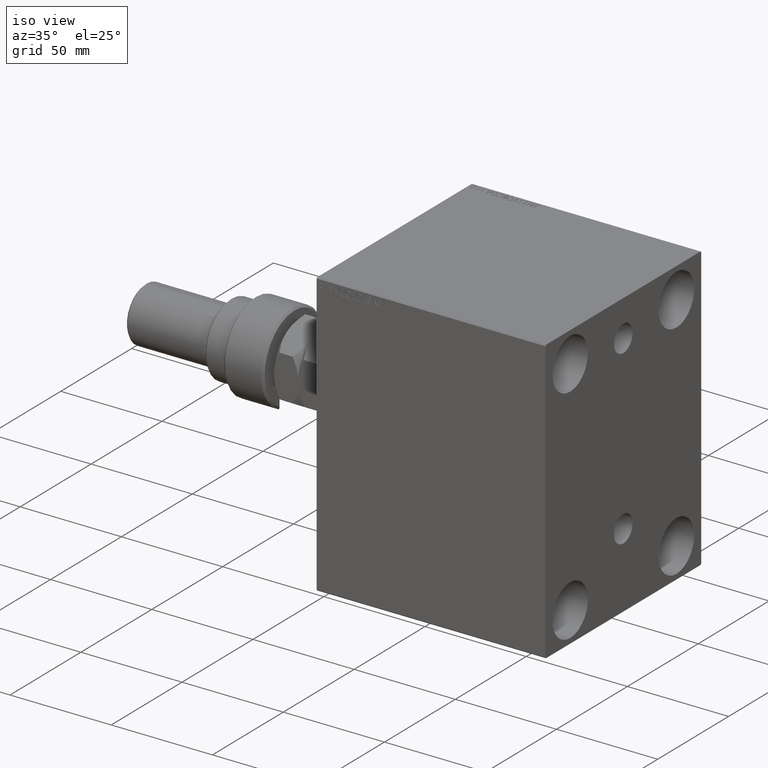
[diagram: clean part render]
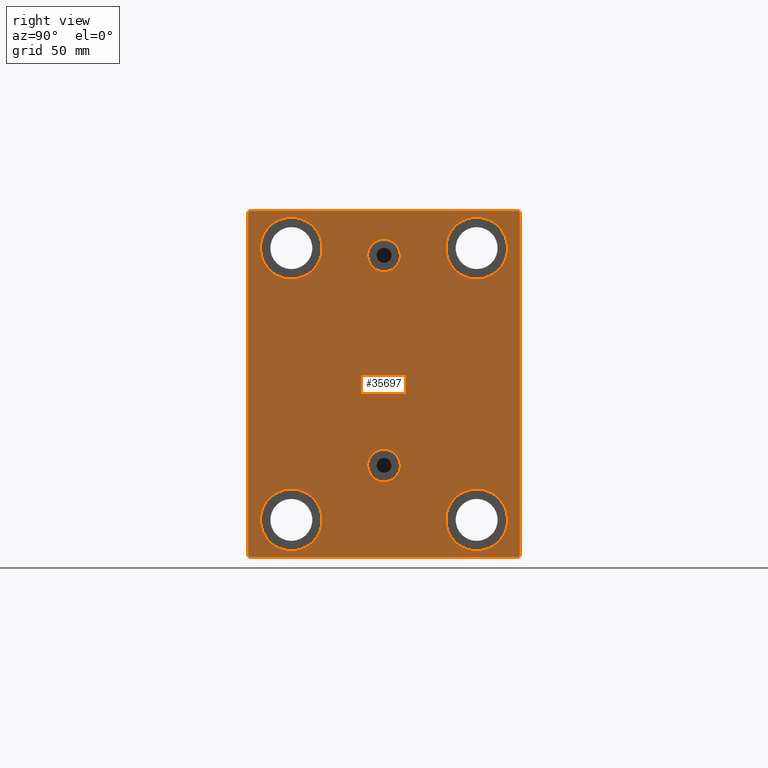
[diagram: tour spotlight — one face highlighted and labeled with its STEP entity id]
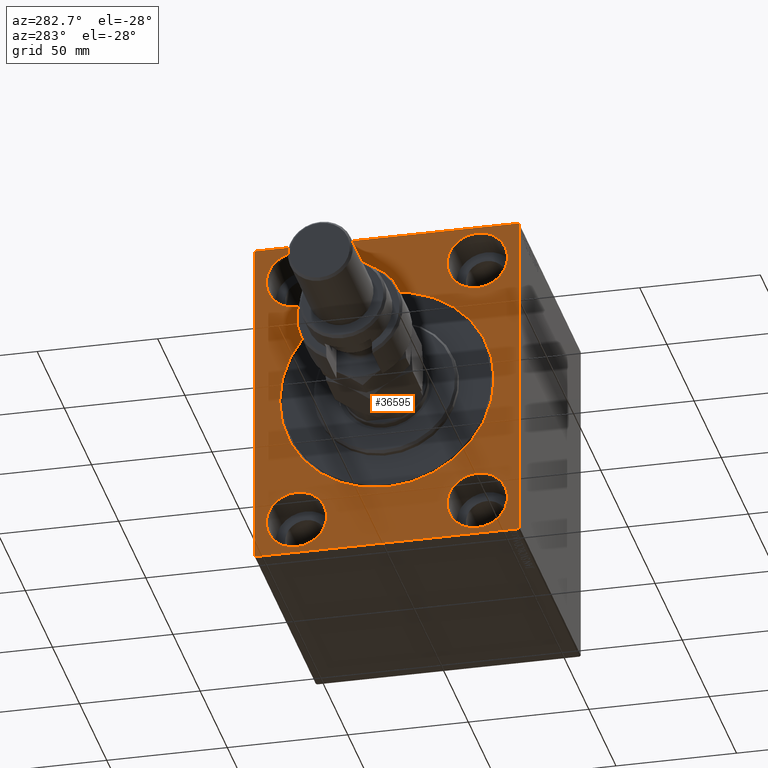
[diagram: tour spotlight — one face highlighted and labeled with its STEP entity id]
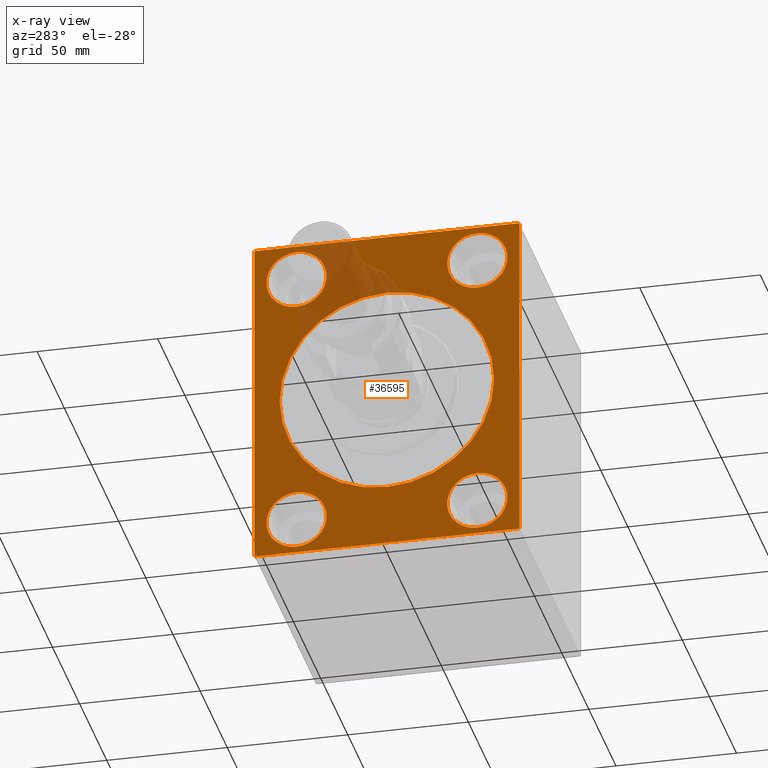
[diagram: x-ray of the same camera — body ghosted, this tour face saturated]
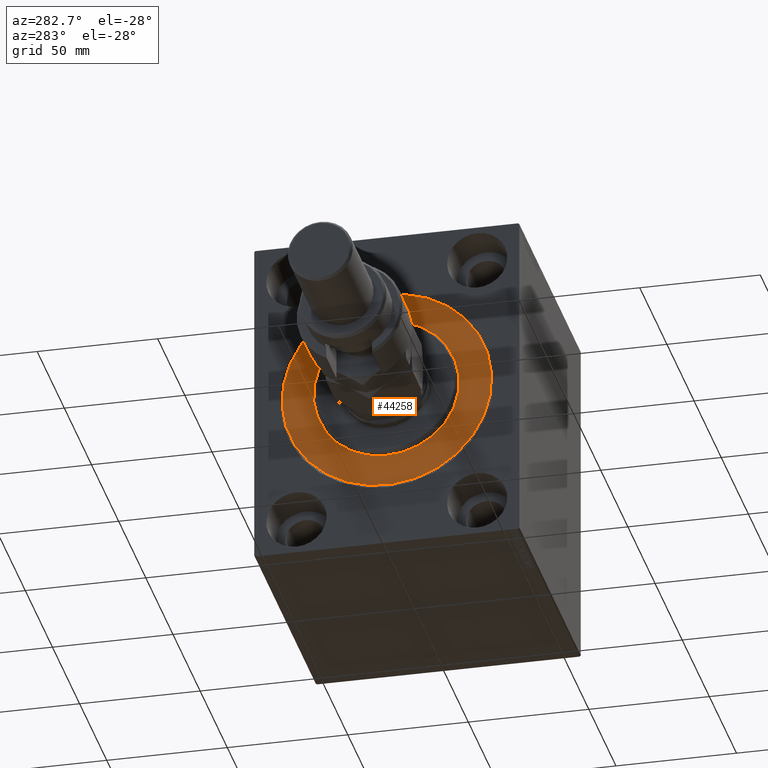
[diagram: tour spotlight — one face highlighted and labeled with its STEP entity id]
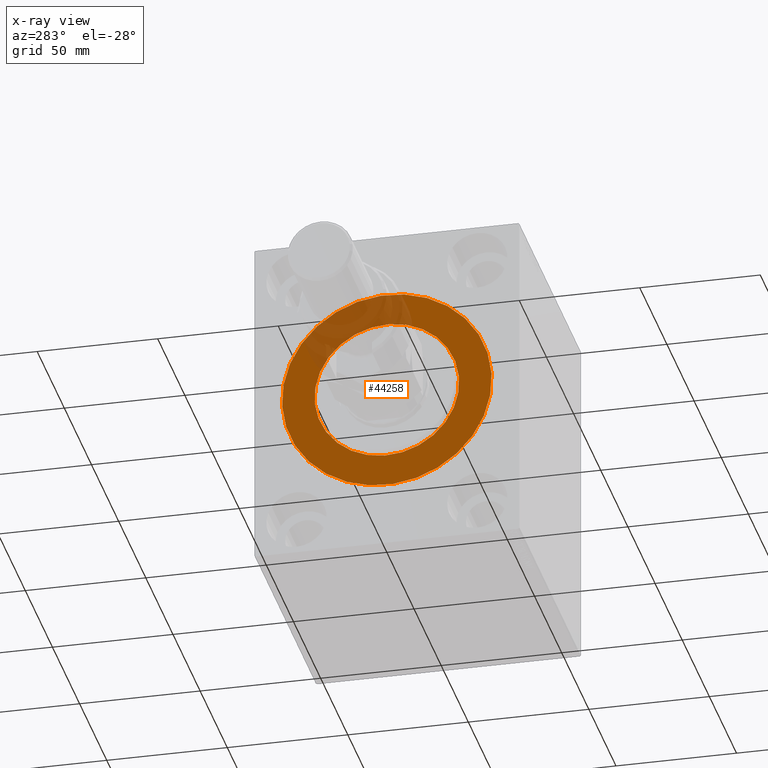
[diagram: x-ray of the same camera — body ghosted, this tour face saturated]
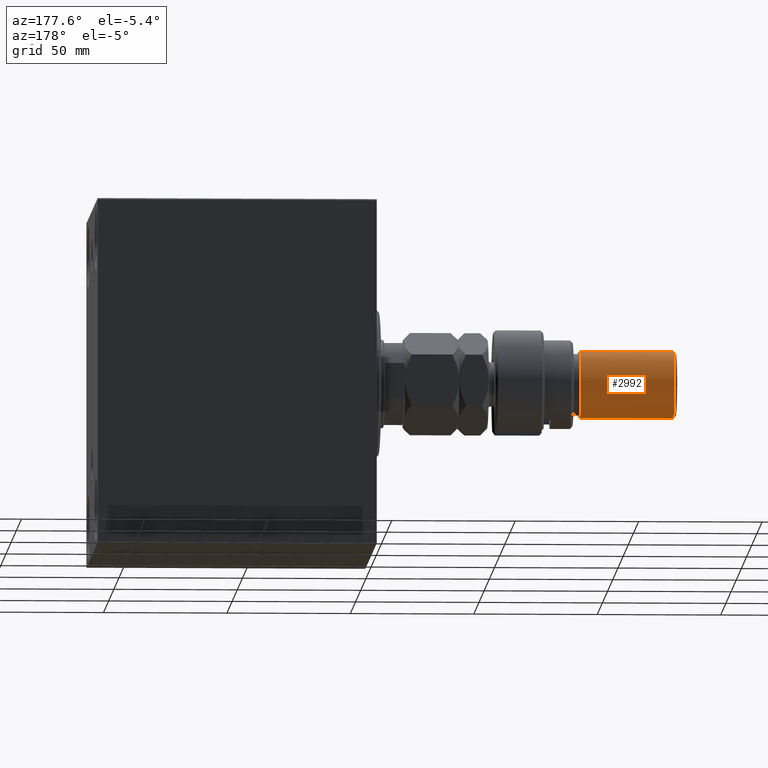
[diagram: tour spotlight — one face highlighted and labeled with its STEP entity id]
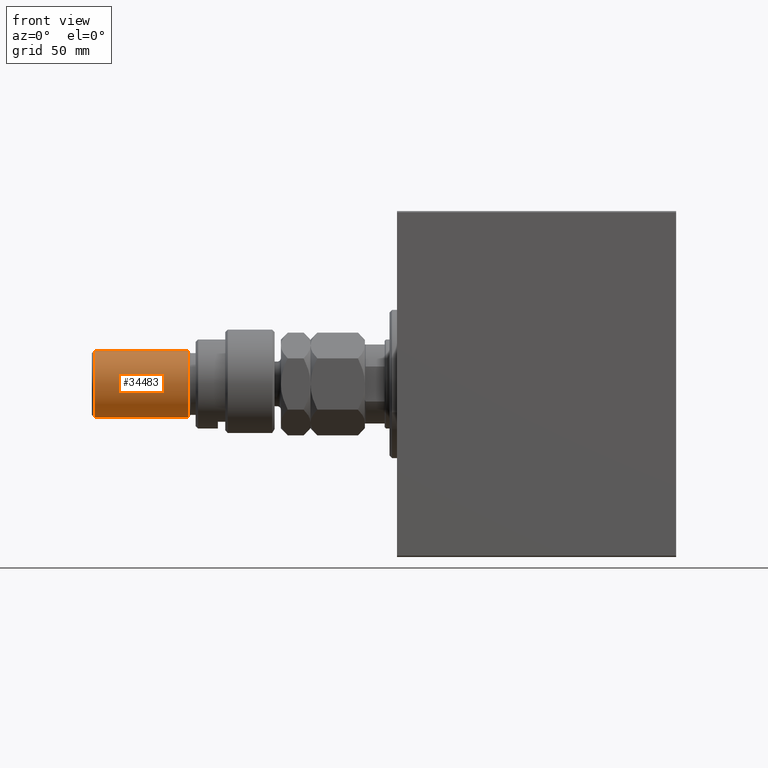
[diagram: tour spotlight — one face highlighted and labeled with its STEP entity id]
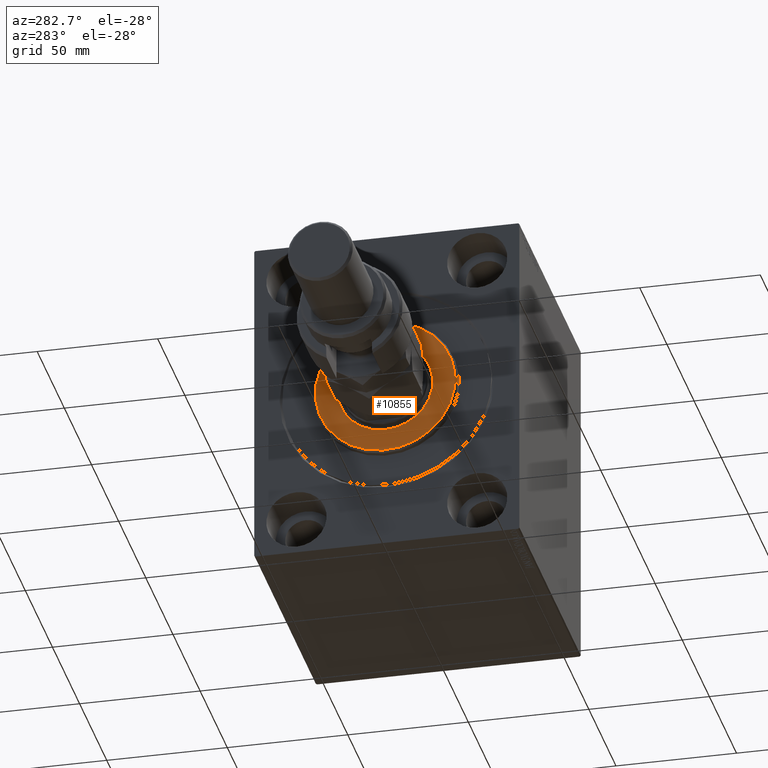
[diagram: tour spotlight — one face highlighted and labeled with its STEP entity id]
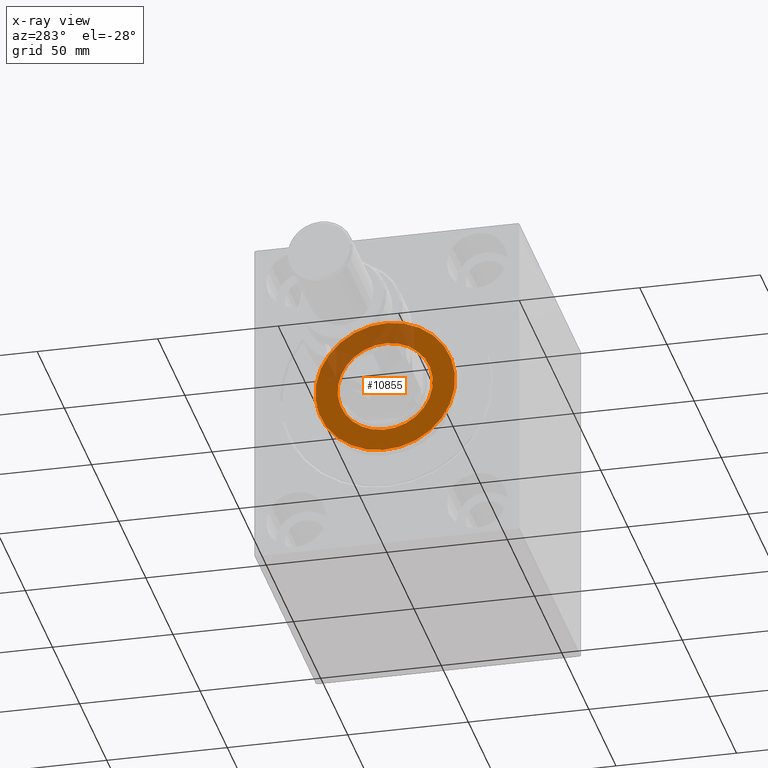
[diagram: x-ray of the same camera — body ghosted, this tour face saturated]
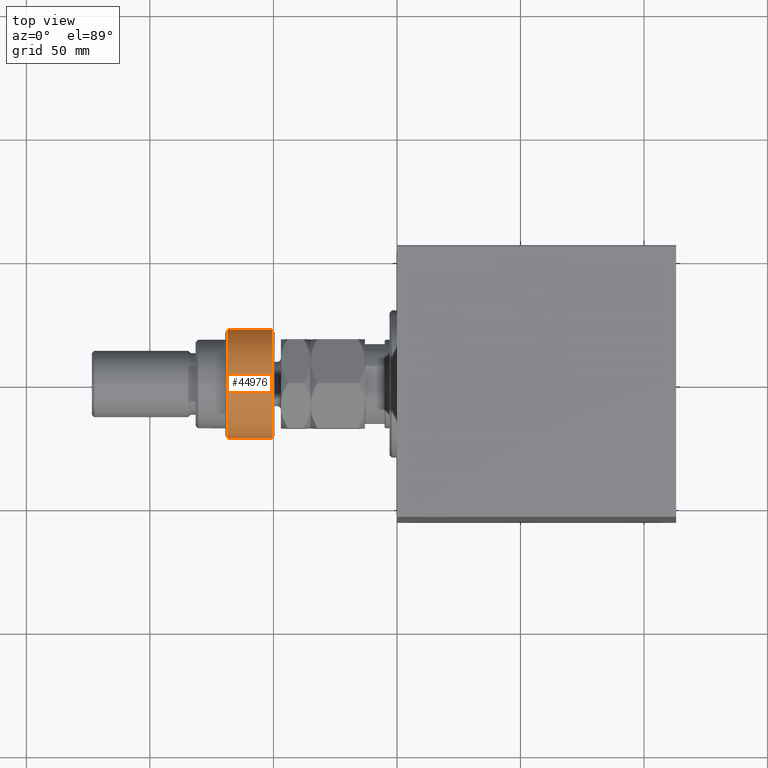
[diagram: tour spotlight — one face highlighted and labeled with its STEP entity id]
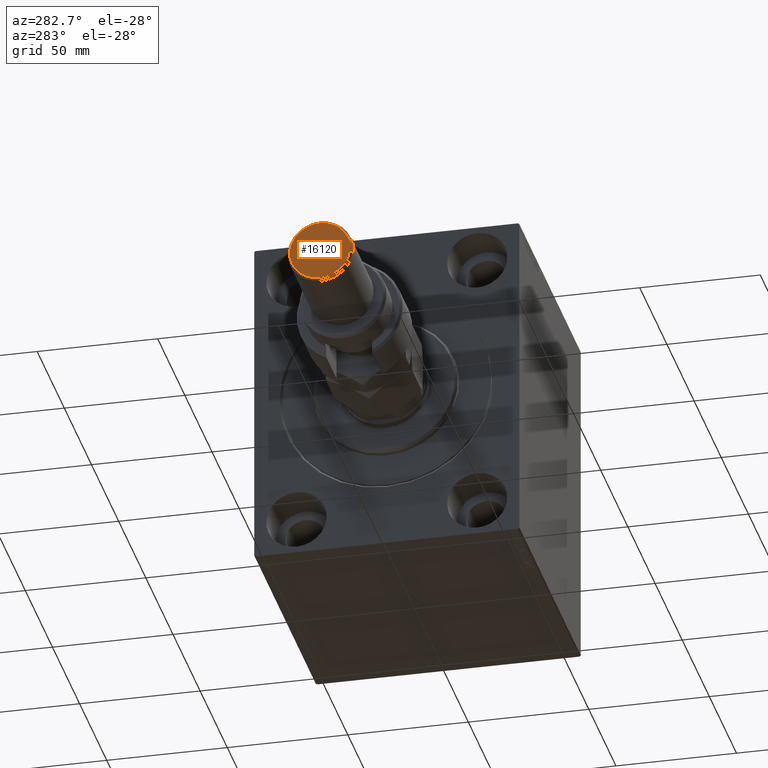
[diagram: tour spotlight — one face highlighted and labeled with its STEP entity id]
A machine part: a face-by-face anatomy tour. The part has 945 B-rep faces; the first image is the clean iso view, then the 8 largest visible faces are spotlighted one at a time (largest first), each with its STEP entity span.

Face 1 — right view, entity #35697. In plain terms, the highlighted planar face has unit normal (1, 0, 0).
Definition (entity closure, byte-faithful):
#718 = AXIS2_PLACEMENT_3D ( 'NONE', #38336, #41882, #9526 ) ;
#804 = ORIENTED_EDGE ( 'NONE', *, *, #33606, .T. ) ;
#865 = EDGE_CURVE ( 'NONE', #20344, #24026, #20164, .T. ) ;
#989 = EDGE_LOOP ( 'NONE', ( #26967, #21794 ) ) ;
#1105 = AXIS2_PLACEMENT_3D ( 'NONE', #44028, #7901, #36717 ) ;
#1686 = VERTEX_POINT ( 'NONE', #13361 ) ;
#1889 = EDGE_CURVE ( 'NONE', #44333, #20344, #32868, .T. ) ;
#2073 = LINE ( 'NONE', #19779, #3429 ) ;
#2212 = VERTEX_POINT ( 'NONE', #13421 ) ;
#2272 = EDGE_CURVE ( 'NONE', #23511, #7627, #21233, .T. ) ;
#2336 = DIRECTION ( 'NONE',  ( 1.000000000000000000, 0.000000000000000000, 0.000000000000000000 ) ) ;
#2602 = CIRCLE ( 'NONE', #1105, 12.49999999999999645 ) ;
#3189 = DIRECTION ( 'NONE',  ( 1.000000000000000000, 0.000000000000000000, 0.000000000000000000 ) ) ;
#3289 = CARTESIAN_POINT ( 'NONE',  ( 113.0000000000000000, -55.00000000000000711, -69.50000000000007105 ) ) ;
#3429 = VECTOR ( 'NONE', #23088, 1000.000000000000000 ) ;
#3535 = CARTESIAN_POINT ( 'NONE',  ( 113.0000000000000000, 62.24999999999999289, 62.24999999999999289 ) ) ;
#3605 = EDGE_CURVE ( 'NONE', #27735, #43962, #10710, .T. ) ;
#4068 = VERTEX_POINT ( 'NONE', #12125 ) ;
#4117 = ORIENTED_EDGE ( 'NONE', *, *, #7820, .T. ) ;
#4283 = CIRCLE ( 'NONE', #28437, 12.49999999999999645 ) ;
#4360 = CARTESIAN_POINT ( 'NONE',  ( 113.0000000000000000, -37.50000000000002132, -54.99999999999999289 ) ) ;
#4454 = CARTESIAN_POINT ( 'NONE',  ( 113.0000000000000000, -37.50000000000002132, -54.99999999999999289 ) ) ;
#5251 = CIRCLE ( 'NONE', #718, 12.49999999999999645 ) ;
#5656 = ORIENTED_EDGE ( 'NONE', *, *, #9083, .T. ) ;
#5840 = EDGE_LOOP ( 'NONE', ( #5656, #12038 ) ) ;
#6137 = CARTESIAN_POINT ( 'NONE',  ( 113.0000000000000000, -8.775864102628257178E-15, 52.00000000000000711 ) ) ;
#6901 = DIRECTION ( 'NONE',  ( -1.000000000000000000, -0.000000000000000000, -0.000000000000000000 ) ) ;
#6909 = AXIS2_PLACEMENT_3D ( 'NONE', #23836, #24297, #9648 ) ;
#7002 = CARTESIAN_POINT ( 'NONE',  ( 113.0000000000000000, 4.041334437186266200E-15, -33.00000000000000000 ) ) ;
#7063 = VECTOR ( 'NONE', #9099, 1000.000000000000000 ) ;
#7501 = CARTESIAN_POINT ( 'NONE',  ( 113.0000000000000000, -37.50000000000000711, 42.50000000000000711 ) ) ;
#7627 = VERTEX_POINT ( 'NONE', #29960 ) ;
#7695 = CARTESIAN_POINT ( 'NONE',  ( 113.0000000000000000, -55.00000000000000711, 69.99999999999998579 ) ) ;
#7782 = AXIS2_PLACEMENT_3D ( 'NONE', #4360, #8818, #44706 ) ;
#7820 = EDGE_CURVE ( 'NONE', #17160, #16140, #18336, .T. ) ;
#7901 = DIRECTION ( 'NONE',  ( -1.000000000000000000, -0.000000000000000000, -0.000000000000000000 ) ) ;
#8336 = CARTESIAN_POINT ( 'NONE',  ( 113.0000000000000000, -55.00000000000000711, -70.00000000000002842 ) ) ;
#8436 = CARTESIAN_POINT ( 'NONE',  ( 113.0000000000000000, 37.50000000000000711, 67.50000000000000000 ) ) ;
#8818 = DIRECTION ( 'NONE',  ( -1.000000000000000000, -0.000000000000000000, -0.000000000000000000 ) ) ;
#9083 = EDGE_CURVE ( 'NONE', #43962, #27735, #2602, .T. ) ;
#9099 = DIRECTION ( 'NONE',  ( 0.000000000000000000, -0.7071067811865671127, -0.7071067811865279218 ) ) ;
#9217 = DIRECTION ( 'NONE',  ( 0.000000000000000000, 0.000000000000000000, -1.000000000000000000 ) ) ;
#9399 = DIRECTION ( 'NONE',  ( 0.000000000000000000, 0.000000000000000000, 1.000000000000000000 ) ) ;
#9419 = CIRCLE ( 'NONE', #12444, 12.49999999999999645 ) ;
#9526 = DIRECTION ( 'NONE',  ( 0.000000000000000000, 0.000000000000000000, 1.000000000000000000 ) ) ;
#9648 = DIRECTION ( 'NONE',  ( 0.000000000000000000, 0.000000000000000000, 1.000000000000000000 ) ) ;
#9979 = DIRECTION ( 'NONE',  ( 0.000000000000000000, 0.000000000000000000, 1.000000000000000000 ) ) ;
#10105 = FACE_BOUND ( 'NONE', #989, .T. ) ;
#10209 = CARTESIAN_POINT ( 'NONE',  ( 113.0000000000000000, -7.970046508789298136E-15, 58.58000000000000540 ) ) ;
#10696 = EDGE_LOOP ( 'NONE', ( #33842, #12607 ) ) ;
#10710 = CIRCLE ( 'NONE', #37101, 12.49999999999999645 ) ;
#10758 = VERTEX_POINT ( 'NONE', #8436 ) ;
#10840 = DIRECTION ( 'NONE',  ( -1.000000000000000000, -0.000000000000000000, -0.000000000000000000 ) ) ;
#10870 = ORIENTED_EDGE ( 'NONE', *, *, #29599, .T. ) ;
#10969 = EDGE_CURVE ( 'NONE', #33875, #12332, #44698, .T. ) ;
#11570 = CIRCLE ( 'NONE', #30423, 6.580000000000002736 ) ;
#11712 = CARTESIAN_POINT ( 'NONE',  ( 113.0000000000000000, -62.24999999999849365, 62.25000000000193978 ) ) ;
#11844 = DIRECTION ( 'NONE',  ( -0.000000000000000000, 0.7071067811865574537, -0.7071067811865376918 ) ) ;
#12038 = ORIENTED_EDGE ( 'NONE', *, *, #3605, .T. ) ;
#12125 = CARTESIAN_POINT ( 'NONE',  ( 113.0000000000000000, -37.50000000000002132, -42.49999999999999289 ) ) ;
#12332 = VERTEX_POINT ( 'NONE', #10209 ) ;
#12444 = AXIS2_PLACEMENT_3D ( 'NONE', #21082, #6901, #9979 ) ;
#12607 = ORIENTED_EDGE ( 'NONE', *, *, #16831, .F. ) ;
#12934 = EDGE_LOOP ( 'NONE', ( #19383, #31578 ) ) ;
#12994 = DIRECTION ( 'NONE',  ( 1.000000000000000000, 0.000000000000000000, 0.000000000000000000 ) ) ;
#13028 = AXIS2_PLACEMENT_3D ( 'NONE', #41501, #3189, #23574 ) ;
#13314 = LINE ( 'NONE', #27742, #14762 ) ;
#13361 = CARTESIAN_POINT ( 'NONE',  ( 113.0000000000000000, 4.041334437186266200E-15, -39.58000000000000540 ) ) ;
#13421 = CARTESIAN_POINT ( 'NONE',  ( 113.0000000000000000, 37.50000000000000711, 42.50000000000000711 ) ) ;
#13759 = CIRCLE ( 'NONE', #17541, 12.49999999999999645 ) ;
#14144 = VERTEX_POINT ( 'NONE', #41390 ) ;
#14292 = VERTEX_POINT ( 'NONE', #31932 ) ;
#14382 = DIRECTION ( 'NONE',  ( -0.000000000000000000, -0.7071067811865474617, 0.7071067811865474617 ) ) ;
#14698 = EDGE_CURVE ( 'NONE', #39559, #4068, #13759, .T. ) ;
#14762 = VECTOR ( 'NONE', #38113, 1000.000000000000000 ) ;
#15079 = DIRECTION ( 'NONE',  ( -1.000000000000000000, -0.000000000000000000, -0.000000000000000000 ) ) ;
#15117 = AXIS2_PLACEMENT_3D ( 'NONE', #6137, #12994, #9217 ) ;
#15125 = DIRECTION ( 'NONE',  ( -1.000000000000000000, -0.000000000000000000, -0.000000000000000000 ) ) ;
#15183 = VECTOR ( 'NONE', #11844, 999.9999999999998863 ) ;
#15913 = ORIENTED_EDGE ( 'NONE', *, *, #26888, .T. ) ;
#16140 = VERTEX_POINT ( 'NONE', #44473 ) ;
#16431 = CARTESIAN_POINT ( 'NONE',  ( 113.0000000000000000, -54.50000000000003553, -70.00000000000002842 ) ) ;
#16803 = VECTOR ( 'NONE', #37156, 1000.000000000000000 ) ;
#16831 = EDGE_CURVE ( 'NONE', #34463, #1686, #11570, .T. ) ;
#16872 = EDGE_LOOP ( 'NONE', ( #20157, #25750 ) ) ;
#17104 = VECTOR ( 'NONE', #14382, 1000.000000000000114 ) ;
#17160 = VERTEX_POINT ( 'NONE', #24861 ) ;
#17541 = AXIS2_PLACEMENT_3D ( 'NONE', #4454, #10840, #43871 ) ;
#17555 = CARTESIAN_POINT ( 'NONE',  ( 113.0000000000000000, 37.49999999999997868, -42.49999999999999289 ) ) ;
#17702 = LINE ( 'NONE', #3535, #17104 ) ;
#17742 = CARTESIAN_POINT ( 'NONE',  ( 113.0000000000000000, 37.49999999999997868, -67.49999999999998579 ) ) ;
#17910 = EDGE_CURVE ( 'NONE', #4068, #39559, #28180, .T. ) ;
#18336 = LINE ( 'NONE', #11712, #7063 ) ;
#19383 = ORIENTED_EDGE ( 'NONE', *, *, #10969, .F. ) ;
#19666 = LINE ( 'NONE', #23692, #27932 ) ;
#19779 = CARTESIAN_POINT ( 'NONE',  ( 113.0000000000000000, 55.00000000000002132, -70.00000000000000000 ) ) ;
#20157 = ORIENTED_EDGE ( 'NONE', *, *, #14698, .T. ) ;
#20164 = LINE ( 'NONE', #8336, #16803 ) ;
#20344 = VERTEX_POINT ( 'NONE', #16431 ) ;
#20711 = VERTEX_POINT ( 'NONE', #22394 ) ;
#20751 = FACE_BOUND ( 'NONE', #12934, .T. ) ;
#21082 = CARTESIAN_POINT ( 'NONE',  ( 113.0000000000000000, -37.50000000000000711, 55.00000000000000711 ) ) ;
#21192 = DIRECTION ( 'NONE',  ( 0.000000000000000000, 0.000000000000000000, -1.000000000000000000 ) ) ;
#21233 = CIRCLE ( 'NONE', #6909, 12.49999999999999645 ) ;
#21409 = EDGE_CURVE ( 'NONE', #7627, #23511, #9419, .T. ) ;
#21794 = ORIENTED_EDGE ( 'NONE', *, *, #21409, .T. ) ;
#22394 = CARTESIAN_POINT ( 'NONE',  ( 113.0000000000000000, 55.00000000000002132, -69.50000000000002842 ) ) ;
#22572 = EDGE_CURVE ( 'NONE', #20711, #14292, #2073, .T. ) ;
#23088 = DIRECTION ( 'NONE',  ( 0.000000000000000000, -1.982541115402065110E-16, 1.000000000000000000 ) ) ;
#23399 = CARTESIAN_POINT ( 'NONE',  ( 113.0000000000000000, -37.50000000000002132, -67.49999999999998579 ) ) ;
#23511 = VERTEX_POINT ( 'NONE', #7501 ) ;
#23574 = DIRECTION ( 'NONE',  ( 0.000000000000000000, 0.000000000000000000, -1.000000000000000000 ) ) ;
#23692 = CARTESIAN_POINT ( 'NONE',  ( 113.0000000000000000, 62.25000000000002842, -62.25000000000002842 ) ) ;
#23836 = CARTESIAN_POINT ( 'NONE',  ( 113.0000000000000000, -37.50000000000000711, 55.00000000000000711 ) ) ;
#24026 = VERTEX_POINT ( 'NONE', #36440 ) ;
#24060 = CARTESIAN_POINT ( 'NONE',  ( 113.0000000000000000, 0.000000000000000000, 0.000000000000000000 ) ) ;
#24187 = CIRCLE ( 'NONE', #15117, 6.580000000000002736 ) ;
#24297 = DIRECTION ( 'NONE',  ( -1.000000000000000000, -0.000000000000000000, -0.000000000000000000 ) ) ;
#24861 = CARTESIAN_POINT ( 'NONE',  ( 113.0000000000000000, -54.50000000000003553, 69.99999999999998579 ) ) ;
#25750 = ORIENTED_EDGE ( 'NONE', *, *, #17910, .T. ) ;
#26888 = EDGE_CURVE ( 'NONE', #14144, #17160, #13314, .T. ) ;
#26967 = ORIENTED_EDGE ( 'NONE', *, *, #2272, .T. ) ;
#27735 = VERTEX_POINT ( 'NONE', #17555 ) ;
#27742 = CARTESIAN_POINT ( 'NONE',  ( 113.0000000000000000, 54.99999999999999289, 70.00000000000000000 ) ) ;
#27932 = VECTOR ( 'NONE', #34064, 1000.000000000000114 ) ;
#28180 = CIRCLE ( 'NONE', #7782, 12.49999999999999645 ) ;
#28437 = AXIS2_PLACEMENT_3D ( 'NONE', #44346, #15079, #43878 ) ;
#28455 = EDGE_LOOP ( 'NONE', ( #41583, #37542 ) ) ;
#28747 = LINE ( 'NONE', #7695, #42863 ) ;
#29599 = EDGE_CURVE ( 'NONE', #14292, #14144, #17702, .T. ) ;
#29960 = CARTESIAN_POINT ( 'NONE',  ( 113.0000000000000000, -37.50000000000000711, 67.50000000000000000 ) ) ;
#30423 = AXIS2_PLACEMENT_3D ( 'NONE', #31357, #38676, #9399 ) ;
#30692 = EDGE_CURVE ( 'NONE', #2212, #10758, #4283, .T. ) ;
#31357 = CARTESIAN_POINT ( 'NONE',  ( 113.0000000000000000, 4.041334437186266200E-15, -33.00000000000000000 ) ) ;
#31367 = FACE_OUTER_BOUND ( 'NONE', #37711, .T. ) ;
#31578 = ORIENTED_EDGE ( 'NONE', *, *, #39713, .F. ) ;
#31789 = ORIENTED_EDGE ( 'NONE', *, *, #865, .T. ) ;
#31932 = CARTESIAN_POINT ( 'NONE',  ( 113.0000000000000000, 54.99999999999999289, 69.50000000000000000 ) ) ;
#32789 = ORIENTED_EDGE ( 'NONE', *, *, #22572, .T. ) ;
#32868 = LINE ( 'NONE', #40643, #15183 ) ;
#33316 = DIRECTION ( 'NONE',  ( 0.000000000000000000, 0.000000000000000000, 1.000000000000000000 ) ) ;
#33606 = EDGE_CURVE ( 'NONE', #16140, #44333, #28747, .T. ) ;
#33842 = ORIENTED_EDGE ( 'NONE', *, *, #41961, .F. ) ;
#33875 = VERTEX_POINT ( 'NONE', #44234 ) ;
#34064 = DIRECTION ( 'NONE',  ( -0.000000000000000000, 0.7071067811865474617, 0.7071067811865474617 ) ) ;
#34450 = FACE_BOUND ( 'NONE', #5840, .T. ) ;
#34463 = VERTEX_POINT ( 'NONE', #37224 ) ;
#34625 = AXIS2_PLACEMENT_3D ( 'NONE', #7002, #38892, #35582 ) ;
#34682 = FACE_BOUND ( 'NONE', #10696, .T. ) ;
#35147 = FACE_BOUND ( 'NONE', #28455, .T. ) ;
#35372 = PLANE ( 'NONE',  #44376 ) ;
#35582 = DIRECTION ( 'NONE',  ( 0.000000000000000000, 0.000000000000000000, 1.000000000000000000 ) ) ;
#35697 = ADVANCED_FACE ( 'NONE', ( #20751, #34682, #34450, #10105, #35147, #38684, #31367 ), #35372, .T. ) ;
#36389 = CARTESIAN_POINT ( 'NONE',  ( 113.0000000000000000, 37.49999999999997868, -54.99999999999999289 ) ) ;
#36440 = CARTESIAN_POINT ( 'NONE',  ( 113.0000000000000000, 54.50000000000004974, -70.00000000000000000 ) ) ;
#36717 = DIRECTION ( 'NONE',  ( 0.000000000000000000, 0.000000000000000000, 1.000000000000000000 ) ) ;
#37101 = AXIS2_PLACEMENT_3D ( 'NONE', #36389, #15125, #33316 ) ;
#37156 = DIRECTION ( 'NONE',  ( 0.000000000000000000, 1.000000000000000000, 2.523234146875355012E-16 ) ) ;
#37224 = CARTESIAN_POINT ( 'NONE',  ( 113.0000000000000000, 4.847152031025224453E-15, -26.41999999999999815 ) ) ;
#37542 = ORIENTED_EDGE ( 'NONE', *, *, #43428, .T. ) ;
#37711 = EDGE_LOOP ( 'NONE', ( #15913, #4117, #804, #39356, #31789, #44086, #32789, #10870 ) ) ;
#37982 = DIRECTION ( 'NONE',  ( 0.000000000000000000, 0.000000000000000000, -1.000000000000000000 ) ) ;
#38113 = DIRECTION ( 'NONE',  ( 0.000000000000000000, -1.000000000000000000, -1.261617073437677999E-16 ) ) ;
#38336 = CARTESIAN_POINT ( 'NONE',  ( 113.0000000000000000, 37.50000000000000711, 55.00000000000000711 ) ) ;
#38579 = EDGE_CURVE ( 'NONE', #24026, #20711, #19666, .T. ) ;
#38676 = DIRECTION ( 'NONE',  ( 1.000000000000000000, 0.000000000000000000, -0.000000000000000000 ) ) ;
#38684 = FACE_BOUND ( 'NONE', #16872, .T. ) ;
#38892 = DIRECTION ( 'NONE',  ( 1.000000000000000000, 0.000000000000000000, -0.000000000000000000 ) ) ;
#39356 = ORIENTED_EDGE ( 'NONE', *, *, #1889, .T. ) ;
#39559 = VERTEX_POINT ( 'NONE', #23399 ) ;
#39713 = EDGE_CURVE ( 'NONE', #12332, #33875, #24187, .T. ) ;
#40643 = CARTESIAN_POINT ( 'NONE',  ( 113.0000000000000000, -62.24999999999927525, -62.25000000000100897 ) ) ;
#41390 = CARTESIAN_POINT ( 'NONE',  ( 113.0000000000000000, 54.49999999999999289, 70.00000000000000000 ) ) ;
#41501 = CARTESIAN_POINT ( 'NONE',  ( 113.0000000000000000, -8.775864102628257178E-15, 52.00000000000000711 ) ) ;
#41583 = ORIENTED_EDGE ( 'NONE', *, *, #30692, .T. ) ;
#41882 = DIRECTION ( 'NONE',  ( -1.000000000000000000, -0.000000000000000000, -0.000000000000000000 ) ) ;
#41961 = EDGE_CURVE ( 'NONE', #1686, #34463, #43650, .T. ) ;
#42863 = VECTOR ( 'NONE', #21192, 1000.000000000000000 ) ;
#43428 = EDGE_CURVE ( 'NONE', #10758, #2212, #5251, .T. ) ;
#43650 = CIRCLE ( 'NONE', #34625, 6.580000000000002736 ) ;
#43871 = DIRECTION ( 'NONE',  ( 0.000000000000000000, 0.000000000000000000, 1.000000000000000000 ) ) ;
#43878 = DIRECTION ( 'NONE',  ( 0.000000000000000000, 0.000000000000000000, 1.000000000000000000 ) ) ;
#43962 = VERTEX_POINT ( 'NONE', #17742 ) ;
#44028 = CARTESIAN_POINT ( 'NONE',  ( 113.0000000000000000, 37.49999999999997868, -54.99999999999999289 ) ) ;
#44086 = ORIENTED_EDGE ( 'NONE', *, *, #38579, .T. ) ;
#44234 = CARTESIAN_POINT ( 'NONE',  ( 113.0000000000000000, -8.775864102628257178E-15, 45.42000000000000171 ) ) ;
#44333 = VERTEX_POINT ( 'NONE', #3289 ) ;
#44346 = CARTESIAN_POINT ( 'NONE',  ( 113.0000000000000000, 37.50000000000000711, 55.00000000000000711 ) ) ;
#44376 = AXIS2_PLACEMENT_3D ( 'NONE', #24060, #2336, #37982 ) ;
#44473 = CARTESIAN_POINT ( 'NONE',  ( 113.0000000000000000, -55.00000000000000711, 69.50000000000004263 ) ) ;
#44698 = CIRCLE ( 'NONE', #13028, 6.580000000000002736 ) ;
#44706 = DIRECTION ( 'NONE',  ( 0.000000000000000000, 0.000000000000000000, 1.000000000000000000 ) ) ;

Face 2 — auxiliary view, entity #36595. An x-ray twin of the same camera follows (body ghosted, this face saturated) — the face is partly hidden behind the body. In plain terms, the highlighted planar face has unit normal (1, 0, 0).
Definition (entity closure, byte-faithful):
#320 = DIRECTION ( 'NONE',  ( 0.000000000000000000, 0.000000000000000000, -1.000000000000000000 ) ) ;
#922 = CARTESIAN_POINT ( 'NONE',  ( 0.000000000000000000, 54.49999999999999289, 70.00000000000000000 ) ) ;
#1017 = CARTESIAN_POINT ( 'NONE',  ( 0.000000000000000000, 37.49999999999997868, -67.49999999999998579 ) ) ;
#1424 = CARTESIAN_POINT ( 'NONE',  ( 0.000000000000000000, -55.00000000000000711, 69.99999999999998579 ) ) ;
#1447 = CARTESIAN_POINT ( 'NONE',  ( 0.000000000000000000, 0.000000000000000000, 0.000000000000000000 ) ) ;
#1751 = LINE ( 'NONE', #20172, #38696 ) ;
#1809 = VECTOR ( 'NONE', #46598, 1000.000000000000000 ) ;
#1819 = FACE_BOUND ( 'NONE', #43275, .T. ) ;
#1959 = DIRECTION ( 'NONE',  ( -1.000000000000000000, 0.000000000000000000, 0.000000000000000000 ) ) ;
#2170 = ORIENTED_EDGE ( 'NONE', *, *, #19197, .F. ) ;
#2309 = AXIS2_PLACEMENT_3D ( 'NONE', #9078, #9321, #320 ) ;
#2886 = DIRECTION ( 'NONE',  ( 0.000000000000000000, 0.000000000000000000, 1.000000000000000000 ) ) ;
#3332 = AXIS2_PLACEMENT_3D ( 'NONE', #25586, #10475, #14938 ) ;
#3576 = ORIENTED_EDGE ( 'NONE', *, *, #23053, .T. ) ;
#3736 = ORIENTED_EDGE ( 'NONE', *, *, #33414, .F. ) ;
#3921 = CARTESIAN_POINT ( 'NONE',  ( 0.000000000000000000, 55.00000000000002132, -69.50000000000002842 ) ) ;
#4079 = DIRECTION ( 'NONE',  ( -1.000000000000000000, 0.000000000000000000, 0.000000000000000000 ) ) ;
#4249 = ORIENTED_EDGE ( 'NONE', *, *, #5073, .F. ) ;
#4423 = ORIENTED_EDGE ( 'NONE', *, *, #32880, .F. ) ;
#5073 = EDGE_CURVE ( 'NONE', #34107, #25292, #1751, .T. ) ;
#5208 = ORIENTED_EDGE ( 'NONE', *, *, #38319, .T. ) ;
#5299 = CIRCLE ( 'NONE', #2309, 44.49999999999998579 ) ;
#5449 = DIRECTION ( 'NONE',  ( -0.000000000000000000, 0.7071067811865474617, -0.7071067811865474617 ) ) ;
#5780 = VERTEX_POINT ( 'NONE', #39057 ) ;
#5878 = AXIS2_PLACEMENT_3D ( 'NONE', #16844, #41871, #35708 ) ;
#6714 = DIRECTION ( 'NONE',  ( -0.000000000000000000, -0.7071067811865574537, 0.7071067811865376918 ) ) ;
#7495 = ORIENTED_EDGE ( 'NONE', *, *, #16778, .F. ) ;
#8044 = VECTOR ( 'NONE', #28375, 1000.000000000000000 ) ;
#8170 = CARTESIAN_POINT ( 'NONE',  ( 0.000000000000000000, 0.000000000000000000, 0.000000000000000000 ) ) ;
#8649 = FACE_BOUND ( 'NONE', #13616, .T. ) ;
#8725 = ORIENTED_EDGE ( 'NONE', *, *, #23917, .T. ) ;
#8766 = CARTESIAN_POINT ( 'NONE',  ( 0.000000000000000000, 5.449678256205719615E-15, -44.49999999999998579 ) ) ;
#9063 = CIRCLE ( 'NONE', #18874, 12.49999999999999645 ) ;
#9078 = CARTESIAN_POINT ( 'NONE',  ( 0.000000000000000000, 0.000000000000000000, 0.000000000000000000 ) ) ;
#9184 = AXIS2_PLACEMENT_3D ( 'NONE', #1447, #41103, #12299 ) ;
#9321 = DIRECTION ( 'NONE',  ( 1.000000000000000000, 0.000000000000000000, 0.000000000000000000 ) ) ;
#9761 = VERTEX_POINT ( 'NONE', #3921 ) ;
#10161 = VERTEX_POINT ( 'NONE', #1017 ) ;
#10475 = DIRECTION ( 'NONE',  ( -1.000000000000000000, 0.000000000000000000, 0.000000000000000000 ) ) ;
#10652 = EDGE_CURVE ( 'NONE', #34107, #43023, #16070, .T. ) ;
#11187 = AXIS2_PLACEMENT_3D ( 'NONE', #31136, #35365, #45752 ) ;
#11774 = DIRECTION ( 'NONE',  ( 0.000000000000000000, 0.000000000000000000, 1.000000000000000000 ) ) ;
#11978 = AXIS2_PLACEMENT_3D ( 'NONE', #45216, #27067, #37909 ) ;
#12166 = ORIENTED_EDGE ( 'NONE', *, *, #10652, .T. ) ;
#12195 = FACE_BOUND ( 'NONE', #45957, .T. ) ;
#12299 = DIRECTION ( 'NONE',  ( 0.000000000000000000, 0.000000000000000000, -1.000000000000000000 ) ) ;
#12597 = EDGE_CURVE ( 'NONE', #27206, #46600, #13069, .T. ) ;
#12800 = CARTESIAN_POINT ( 'NONE',  ( 0.000000000000000000, -37.50000000000000711, 55.00000000000000711 ) ) ;
#13069 = CIRCLE ( 'NONE', #9184, 44.49999999999998579 ) ;
#13561 = EDGE_LOOP ( 'NONE', ( #42819, #3576, #4249, #12166, #22976, #18891, #43958, #8725 ) ) ;
#13616 = EDGE_LOOP ( 'NONE', ( #5208, #34019 ) ) ;
#13963 = DIRECTION ( 'NONE',  ( -1.000000000000000000, 0.000000000000000000, 0.000000000000000000 ) ) ;
#14429 = DIRECTION ( 'NONE',  ( 0.000000000000000000, 0.000000000000000000, 1.000000000000000000 ) ) ;
#14483 = LINE ( 'NONE', #36663, #1809 ) ;
#14938 = DIRECTION ( 'NONE',  ( 0.000000000000000000, 0.000000000000000000, 1.000000000000000000 ) ) ;
#15280 = CARTESIAN_POINT ( 'NONE',  ( 0.000000000000000000, 37.49999999999997868, -42.49999999999999289 ) ) ;
#15306 = CIRCLE ( 'NONE', #41714, 12.49999999999999645 ) ;
#15471 = CARTESIAN_POINT ( 'NONE',  ( 0.000000000000000000, 54.50000000000004974, -70.00000000000000000 ) ) ;
#16070 = LINE ( 'NONE', #41328, #21508 ) ;
#16305 = LINE ( 'NONE', #1424, #24221 ) ;
#16471 = ORIENTED_EDGE ( 'NONE', *, *, #19300, .F. ) ;
#16778 = EDGE_CURVE ( 'NONE', #21284, #32258, #15306, .T. ) ;
#16844 = CARTESIAN_POINT ( 'NONE',  ( 0.000000000000000000, 37.49999999999997868, -54.99999999999999289 ) ) ;
#16946 = CIRCLE ( 'NONE', #32007, 12.49999999999999645 ) ;
#17778 = VECTOR ( 'NONE', #20662, 1000.000000000000000 ) ;
#17855 = EDGE_LOOP ( 'NONE', ( #2170, #7495 ) ) ;
#18015 = CARTESIAN_POINT ( 'NONE',  ( 0.000000000000000000, -37.50000000000000711, 55.00000000000000711 ) ) ;
#18654 = CARTESIAN_POINT ( 'NONE',  ( 0.000000000000000000, -55.00000000000000711, -70.00000000000002842 ) ) ;
#18874 = AXIS2_PLACEMENT_3D ( 'NONE', #46076, #13963, #14429 ) ;
#18891 = ORIENTED_EDGE ( 'NONE', *, *, #27023, .T. ) ;
#19168 = EDGE_CURVE ( 'NONE', #9761, #43023, #14483, .T. ) ;
#19197 = EDGE_CURVE ( 'NONE', #32258, #21284, #23695, .T. ) ;
#19300 = EDGE_CURVE ( 'NONE', #35317, #46025, #16946, .T. ) ;
#19527 = FACE_BOUND ( 'NONE', #42805, .T. ) ;
#19764 = FACE_BOUND ( 'NONE', #17855, .T. ) ;
#20172 = CARTESIAN_POINT ( 'NONE',  ( 0.000000000000000000, 54.99999999999999289, 70.00000000000000000 ) ) ;
#20183 = CARTESIAN_POINT ( 'NONE',  ( 0.000000000000000000, -37.50000000000002132, -42.49999999999999289 ) ) ;
#20662 = DIRECTION ( 'NONE',  ( -0.000000000000000000, 0.7071067811865671127, 0.7071067811865279218 ) ) ;
#20986 = VERTEX_POINT ( 'NONE', #23049 ) ;
#21250 = CARTESIAN_POINT ( 'NONE',  ( 0.000000000000000000, 54.99999999999999289, 69.50000000000000000 ) ) ;
#21284 = VERTEX_POINT ( 'NONE', #33382 ) ;
#21508 = VECTOR ( 'NONE', #5449, 1000.000000000000114 ) ;
#21789 = LINE ( 'NONE', #32651, #41262 ) ;
#22976 = ORIENTED_EDGE ( 'NONE', *, *, #19168, .F. ) ;
#23049 = CARTESIAN_POINT ( 'NONE',  ( 0.000000000000000000, -55.00000000000000711, -69.50000000000007105 ) ) ;
#23053 = EDGE_CURVE ( 'NONE', #37423, #25292, #34359, .T. ) ;
#23695 = CIRCLE ( 'NONE', #3332, 12.49999999999999645 ) ;
#23917 = EDGE_CURVE ( 'NONE', #41101, #20986, #24667, .T. ) ;
#24073 = CIRCLE ( 'NONE', #11978, 12.49999999999999645 ) ;
#24221 = VECTOR ( 'NONE', #30231, 1000.000000000000000 ) ;
#24667 = LINE ( 'NONE', #41916, #43394 ) ;
#24851 = AXIS2_PLACEMENT_3D ( 'NONE', #8170, #29919, #44297 ) ;
#25292 = VERTEX_POINT ( 'NONE', #31783 ) ;
#25361 = ORIENTED_EDGE ( 'NONE', *, *, #27861, .F. ) ;
#25489 = CIRCLE ( 'NONE', #5878, 12.49999999999999645 ) ;
#25586 = CARTESIAN_POINT ( 'NONE',  ( 0.000000000000000000, -37.50000000000002132, -54.99999999999999289 ) ) ;
#25669 = EDGE_CURVE ( 'NONE', #41101, #38246, #33058, .T. ) ;
#25928 = VERTEX_POINT ( 'NONE', #15280 ) ;
#27023 = EDGE_CURVE ( 'NONE', #9761, #38246, #21789, .T. ) ;
#27067 = DIRECTION ( 'NONE',  ( -1.000000000000000000, 0.000000000000000000, 0.000000000000000000 ) ) ;
#27206 = VERTEX_POINT ( 'NONE', #8766 ) ;
#27861 = EDGE_CURVE ( 'NONE', #46025, #35317, #41943, .T. ) ;
#28375 = DIRECTION ( 'NONE',  ( 0.000000000000000000, 1.000000000000000000, 2.523234146875355012E-16 ) ) ;
#28569 = VERTEX_POINT ( 'NONE', #40546 ) ;
#29694 = CARTESIAN_POINT ( 'NONE',  ( 0.000000000000000000, -37.50000000000000711, 67.50000000000000000 ) ) ;
#29919 = DIRECTION ( 'NONE',  ( 1.000000000000000000, 0.000000000000000000, 0.000000000000000000 ) ) ;
#30231 = DIRECTION ( 'NONE',  ( 0.000000000000000000, 0.000000000000000000, -1.000000000000000000 ) ) ;
#31136 = CARTESIAN_POINT ( 'NONE',  ( 0.000000000000000000, 37.49999999999997868, -54.99999999999999289 ) ) ;
#31163 = CARTESIAN_POINT ( 'NONE',  ( 0.000000000000000000, 0.000000000000000000, 44.49999999999998579 ) ) ;
#31259 = DIRECTION ( 'NONE',  ( 0.000000000000000000, -1.000000000000000000, -1.261617073437677999E-16 ) ) ;
#31739 = CARTESIAN_POINT ( 'NONE',  ( 0.000000000000000000, -55.00000000000000711, 69.50000000000004263 ) ) ;
#31783 = CARTESIAN_POINT ( 'NONE',  ( 0.000000000000000000, -54.50000000000003553, 69.99999999999998579 ) ) ;
#32007 = AXIS2_PLACEMENT_3D ( 'NONE', #12800, #1959, #2886 ) ;
#32258 = VERTEX_POINT ( 'NONE', #20183 ) ;
#32592 = ORIENTED_EDGE ( 'NONE', *, *, #42119, .F. ) ;
#32651 = CARTESIAN_POINT ( 'NONE',  ( 0.000000000000000000, 55.00000000000002132, -69.50000000000002842 ) ) ;
#32764 = ORIENTED_EDGE ( 'NONE', *, *, #38698, .F. ) ;
#32880 = EDGE_CURVE ( 'NONE', #25928, #10161, #25489, .T. ) ;
#33058 = LINE ( 'NONE', #18654, #8044 ) ;
#33382 = CARTESIAN_POINT ( 'NONE',  ( 0.000000000000000000, -37.50000000000002132, -67.49999999999998579 ) ) ;
#33414 = EDGE_CURVE ( 'NONE', #10161, #25928, #33811, .T. ) ;
#33811 = CIRCLE ( 'NONE', #11187, 12.49999999999999645 ) ;
#33964 = DIRECTION ( 'NONE',  ( -1.000000000000000000, 0.000000000000000000, 0.000000000000000000 ) ) ;
#34019 = ORIENTED_EDGE ( 'NONE', *, *, #12597, .T. ) ;
#34107 = VERTEX_POINT ( 'NONE', #922 ) ;
#34161 = FACE_OUTER_BOUND ( 'NONE', #13561, .T. ) ;
#34359 = LINE ( 'NONE', #31739, #17778 ) ;
#35317 = VERTEX_POINT ( 'NONE', #29694 ) ;
#35365 = DIRECTION ( 'NONE',  ( -1.000000000000000000, 0.000000000000000000, 0.000000000000000000 ) ) ;
#35708 = DIRECTION ( 'NONE',  ( 0.000000000000000000, 0.000000000000000000, 1.000000000000000000 ) ) ;
#36211 = CARTESIAN_POINT ( 'NONE',  ( 0.000000000000000000, -37.50000000000000711, 42.50000000000000711 ) ) ;
#36595 = ADVANCED_FACE ( 'NONE', ( #8649, #12195, #1819, #19527, #19764, #34161 ), #36756, .F. ) ;
#36663 = CARTESIAN_POINT ( 'NONE',  ( 0.000000000000000000, 55.00000000000002132, -70.00000000000000000 ) ) ;
#36756 = PLANE ( 'NONE',  #24851 ) ;
#37423 = VERTEX_POINT ( 'NONE', #46056 ) ;
#37909 = DIRECTION ( 'NONE',  ( 0.000000000000000000, 0.000000000000000000, 1.000000000000000000 ) ) ;
#38246 = VERTEX_POINT ( 'NONE', #15471 ) ;
#38319 = EDGE_CURVE ( 'NONE', #46600, #27206, #5299, .T. ) ;
#38696 = VECTOR ( 'NONE', #31259, 1000.000000000000000 ) ;
#38698 = EDGE_CURVE ( 'NONE', #5780, #28569, #9063, .T. ) ;
#39057 = CARTESIAN_POINT ( 'NONE',  ( 0.000000000000000000, 37.50000000000000711, 42.50000000000000711 ) ) ;
#40546 = CARTESIAN_POINT ( 'NONE',  ( 0.000000000000000000, 37.50000000000000711, 67.50000000000000000 ) ) ;
#40711 = EDGE_CURVE ( 'NONE', #37423, #20986, #16305, .T. ) ;
#41101 = VERTEX_POINT ( 'NONE', #45264 ) ;
#41103 = DIRECTION ( 'NONE',  ( 1.000000000000000000, 0.000000000000000000, 0.000000000000000000 ) ) ;
#41262 = VECTOR ( 'NONE', #43029, 1000.000000000000114 ) ;
#41328 = CARTESIAN_POINT ( 'NONE',  ( 0.000000000000000000, 54.49999999999999289, 70.00000000000000000 ) ) ;
#41714 = AXIS2_PLACEMENT_3D ( 'NONE', #44335, #33964, #11774 ) ;
#41871 = DIRECTION ( 'NONE',  ( -1.000000000000000000, 0.000000000000000000, 0.000000000000000000 ) ) ;
#41916 = CARTESIAN_POINT ( 'NONE',  ( 0.000000000000000000, -54.50000000000003553, -70.00000000000002842 ) ) ;
#41943 = CIRCLE ( 'NONE', #43429, 12.49999999999999645 ) ;
#42119 = EDGE_CURVE ( 'NONE', #28569, #5780, #24073, .T. ) ;
#42805 = EDGE_LOOP ( 'NONE', ( #32592, #32764 ) ) ;
#42819 = ORIENTED_EDGE ( 'NONE', *, *, #40711, .F. ) ;
#43023 = VERTEX_POINT ( 'NONE', #21250 ) ;
#43029 = DIRECTION ( 'NONE',  ( 0.000000000000000000, -0.7071067811865474617, -0.7071067811865474617 ) ) ;
#43269 = DIRECTION ( 'NONE',  ( 0.000000000000000000, 0.000000000000000000, 1.000000000000000000 ) ) ;
#43275 = EDGE_LOOP ( 'NONE', ( #16471, #25361 ) ) ;
#43394 = VECTOR ( 'NONE', #6714, 999.9999999999998863 ) ;
#43429 = AXIS2_PLACEMENT_3D ( 'NONE', #18015, #4079, #43269 ) ;
#43958 = ORIENTED_EDGE ( 'NONE', *, *, #25669, .F. ) ;
#44297 = DIRECTION ( 'NONE',  ( 0.000000000000000000, 0.000000000000000000, -1.000000000000000000 ) ) ;
#44335 = CARTESIAN_POINT ( 'NONE',  ( 0.000000000000000000, -37.50000000000002132, -54.99999999999999289 ) ) ;
#45216 = CARTESIAN_POINT ( 'NONE',  ( 0.000000000000000000, 37.50000000000000711, 55.00000000000000711 ) ) ;
#45264 = CARTESIAN_POINT ( 'NONE',  ( 0.000000000000000000, -54.50000000000003553, -70.00000000000002842 ) ) ;
#45752 = DIRECTION ( 'NONE',  ( 0.000000000000000000, 0.000000000000000000, 1.000000000000000000 ) ) ;
#45957 = EDGE_LOOP ( 'NONE', ( #4423, #3736 ) ) ;
#46025 = VERTEX_POINT ( 'NONE', #36211 ) ;
#46056 = CARTESIAN_POINT ( 'NONE',  ( 0.000000000000000000, -55.00000000000000711, 69.50000000000004263 ) ) ;
#46076 = CARTESIAN_POINT ( 'NONE',  ( 0.000000000000000000, 37.50000000000000711, 55.00000000000000711 ) ) ;
#46598 = DIRECTION ( 'NONE',  ( 0.000000000000000000, -1.982541115402065110E-16, 1.000000000000000000 ) ) ;
#46600 = VERTEX_POINT ( 'NONE', #31163 ) ;

Face 3 — auxiliary view, entity #44258. An x-ray twin of the same camera follows (body ghosted, this face saturated) — the face is partly hidden behind the body. In plain terms, the highlighted planar face has unit normal (1, 0, -0).
Definition (entity closure, byte-faithful):
#1109 = CARTESIAN_POINT ( 'NONE',  ( 0.000000000000000000, 0.000000000000000000, 0.000000000000000000 ) ) ;
#1559 = VERTEX_POINT ( 'NONE', #3716 ) ;
#2214 = DIRECTION ( 'NONE',  ( -1.000000000000000000, 0.000000000000000000, 0.000000000000000000 ) ) ;
#3513 = PLANE ( 'NONE',  #10504 ) ;
#3716 = CARTESIAN_POINT ( 'NONE',  ( 0.000000000000000000, 0.000000000000000000, 30.00000000000000000 ) ) ;
#3981 = DIRECTION ( 'NONE',  ( 0.000000000000000000, 0.000000000000000000, 1.000000000000000000 ) ) ;
#4439 = CARTESIAN_POINT ( 'NONE',  ( 0.000000000000000000, 0.000000000000000000, 0.000000000000000000 ) ) ;
#4886 = DIRECTION ( 'NONE',  ( 0.000000000000000000, 0.000000000000000000, -1.000000000000000000 ) ) ;
#5281 = CARTESIAN_POINT ( 'NONE',  ( 0.000000000000000000, 0.000000000000000000, 0.000000000000000000 ) ) ;
#6060 = ORIENTED_EDGE ( 'NONE', *, *, #39833, .F. ) ;
#7271 = DIRECTION ( 'NONE',  ( -1.000000000000000000, 0.000000000000000000, 0.000000000000000000 ) ) ;
#8997 = CIRCLE ( 'NONE', #28635, 30.00000000000000000 ) ;
#9845 = AXIS2_PLACEMENT_3D ( 'NONE', #18853, #25953, #15309 ) ;
#10360 = FACE_BOUND ( 'NONE', #42404, .T. ) ;
#10504 = AXIS2_PLACEMENT_3D ( 'NONE', #29236, #7271, #10588 ) ;
#10588 = DIRECTION ( 'NONE',  ( 0.000000000000000000, 0.000000000000000000, 1.000000000000000000 ) ) ;
#11584 = CARTESIAN_POINT ( 'NONE',  ( 0.000000000000000000, 0.000000000000000000, -43.50000000000000000 ) ) ;
#12224 = EDGE_CURVE ( 'NONE', #46482, #38752, #37938, .T. ) ;
#12965 = AXIS2_PLACEMENT_3D ( 'NONE', #5281, #2214, #26784 ) ;
#13489 = CARTESIAN_POINT ( 'NONE',  ( 0.000000000000000000, 3.673940397442059178E-15, -30.00000000000000000 ) ) ;
#14701 = ORIENTED_EDGE ( 'NONE', *, *, #38972, .F. ) ;
#15085 = AXIS2_PLACEMENT_3D ( 'NONE', #4439, #18847, #3981 ) ;
#15309 = DIRECTION ( 'NONE',  ( 0.000000000000000000, 0.000000000000000000, -1.000000000000000000 ) ) ;
#18847 = DIRECTION ( 'NONE',  ( -1.000000000000000000, 0.000000000000000000, 0.000000000000000000 ) ) ;
#18853 = CARTESIAN_POINT ( 'NONE',  ( 0.000000000000000000, 0.000000000000000000, 0.000000000000000000 ) ) ;
#22049 = VERTEX_POINT ( 'NONE', #13489 ) ;
#25953 = DIRECTION ( 'NONE',  ( 1.000000000000000000, -0.000000000000000000, 0.000000000000000000 ) ) ;
#26784 = DIRECTION ( 'NONE',  ( 0.000000000000000000, 0.000000000000000000, 1.000000000000000000 ) ) ;
#27807 = ORIENTED_EDGE ( 'NONE', *, *, #36655, .F. ) ;
#28635 = AXIS2_PLACEMENT_3D ( 'NONE', #1109, #40534, #4886 ) ;
#29236 = CARTESIAN_POINT ( 'NONE',  ( 0.000000000000000000, 0.000000000000000000, 0.000000000000000000 ) ) ;
#33232 = CIRCLE ( 'NONE', #9845, 30.00000000000000000 ) ;
#33945 = CIRCLE ( 'NONE', #15085, 43.50000000000000000 ) ;
#36237 = ORIENTED_EDGE ( 'NONE', *, *, #12224, .F. ) ;
#36655 = EDGE_CURVE ( 'NONE', #22049, #1559, #8997, .T. ) ;
#37938 = CIRCLE ( 'NONE', #12965, 43.50000000000000000 ) ;
#38752 = VERTEX_POINT ( 'NONE', #11584 ) ;
#38972 = EDGE_CURVE ( 'NONE', #38752, #46482, #33945, .T. ) ;
#39673 = CARTESIAN_POINT ( 'NONE',  ( 0.000000000000000000, 5.327213576290986044E-15, 43.50000000000000000 ) ) ;
#39833 = EDGE_CURVE ( 'NONE', #1559, #22049, #33232, .T. ) ;
#40534 = DIRECTION ( 'NONE',  ( 1.000000000000000000, -0.000000000000000000, 0.000000000000000000 ) ) ;
#42404 = EDGE_LOOP ( 'NONE', ( #6060, #27807 ) ) ;
#44258 = ADVANCED_FACE ( 'NONE', ( #10360, #46479 ), #3513, .F. ) ;
#45678 = EDGE_LOOP ( 'NONE', ( #14701, #36237 ) ) ;
#46479 = FACE_OUTER_BOUND ( 'NONE', #45678, .T. ) ;
#46482 = VERTEX_POINT ( 'NONE', #39673 ) ;

Face 4 — auxiliary view, entity #2992. In plain terms, the highlighted cylindrical surface (edge-blend (fillet) strip) has radius 13.5 mm, axis along (1, -0, -0).
Definition (entity closure, byte-faithful):
#2026 = ORIENTED_EDGE ( 'NONE', *, *, #22430, .T. ) ;
#2992 = ADVANCED_FACE ( 'NONE', ( #16898 ), #16194, .T. ) ;
#3336 = DIRECTION ( 'NONE',  ( 1.000000000000000000, 0.000000000000000000, 0.000000000000000000 ) ) ;
#3411 = ORIENTED_EDGE ( 'NONE', *, *, #27399, .T. ) ;
#5566 = DIRECTION ( 'NONE',  ( -1.000000000000000000, 0.000000000000000000, 0.000000000000000000 ) ) ;
#5594 = VERTEX_POINT ( 'NONE', #12724 ) ;
#5683 = VECTOR ( 'NONE', #38241, 1000.000000000000000 ) ;
#7593 = VERTEX_POINT ( 'NONE', #30897 ) ;
#12268 = CARTESIAN_POINT ( 'NONE',  ( 13.50000000000000000, 1.653273178848926867E-15, 74.00000000000001421 ) ) ;
#12338 = CIRCLE ( 'NONE', #32711, 13.50000000000000000 ) ;
#12724 = CARTESIAN_POINT ( 'NONE',  ( -13.50000000000000000, 0.000000000000000000, 73.00000000000001421 ) ) ;
#14022 = VECTOR ( 'NONE', #38512, 1000.000000000000000 ) ;
#16194 = CYLINDRICAL_SURFACE ( 'NONE', #37880, 13.50000000000000000 ) ;
#16898 = FACE_OUTER_BOUND ( 'NONE', #44389, .T. ) ;
#17178 = EDGE_CURVE ( 'NONE', #5594, #7593, #12338, .T. ) ;
#17873 = CIRCLE ( 'NONE', #39670, 13.50000000000000000 ) ;
#18695 = DIRECTION ( 'NONE',  ( 0.000000000000000000, 0.000000000000000000, -1.000000000000000000 ) ) ;
#22162 = CARTESIAN_POINT ( 'NONE',  ( 13.50000000000000000, 1.653273178848926867E-15, 34.99999999999999289 ) ) ;
#22430 = EDGE_CURVE ( 'NONE', #7593, #39892, #23852, .T. ) ;
#23852 = LINE ( 'NONE', #12268, #5683 ) ;
#24704 = EDGE_CURVE ( 'NONE', #5594, #37971, #34749, .T. ) ;
#25203 = ORIENTED_EDGE ( 'NONE', *, *, #24704, .F. ) ;
#27399 = EDGE_CURVE ( 'NONE', #39892, #37971, #17873, .T. ) ;
#28831 = DIRECTION ( 'NONE',  ( -0.000000000000000000, -0.000000000000000000, 1.000000000000000000 ) ) ;
#29697 = CARTESIAN_POINT ( 'NONE',  ( 0.000000000000000000, 0.000000000000000000, 34.99999999999999289 ) ) ;
#30897 = CARTESIAN_POINT ( 'NONE',  ( 13.50000000000000000, 1.653273178848926867E-15, 73.00000000000001421 ) ) ;
#31662 = CARTESIAN_POINT ( 'NONE',  ( -13.50000000000000000, 0.000000000000000000, 74.00000000000001421 ) ) ;
#32403 = DIRECTION ( 'NONE',  ( 1.000000000000000000, 0.000000000000000000, 0.000000000000000000 ) ) ;
#32711 = AXIS2_PLACEMENT_3D ( 'NONE', #35943, #18695, #32403 ) ;
#34749 = LINE ( 'NONE', #31662, #14022 ) ;
#35943 = CARTESIAN_POINT ( 'NONE',  ( 0.000000000000000000, 0.000000000000000000, 73.00000000000001421 ) ) ;
#37009 = ORIENTED_EDGE ( 'NONE', *, *, #17178, .T. ) ;
#37119 = CARTESIAN_POINT ( 'NONE',  ( -13.50000000000000000, 0.000000000000000000, 34.99999999999999289 ) ) ;
#37880 = AXIS2_PLACEMENT_3D ( 'NONE', #37906, #45683, #5566 ) ;
#37906 = CARTESIAN_POINT ( 'NONE',  ( 0.000000000000000000, 0.000000000000000000, 74.00000000000001421 ) ) ;
#37971 = VERTEX_POINT ( 'NONE', #37119 ) ;
#38241 = DIRECTION ( 'NONE',  ( -0.000000000000000000, -0.000000000000000000, -1.000000000000000000 ) ) ;
#38512 = DIRECTION ( 'NONE',  ( -0.000000000000000000, -0.000000000000000000, -1.000000000000000000 ) ) ;
#39670 = AXIS2_PLACEMENT_3D ( 'NONE', #29697, #28831, #3336 ) ;
#39892 = VERTEX_POINT ( 'NONE', #22162 ) ;
#44389 = EDGE_LOOP ( 'NONE', ( #37009, #2026, #3411, #25203 ) ) ;
#45683 = DIRECTION ( 'NONE',  ( -0.000000000000000000, -0.000000000000000000, -1.000000000000000000 ) ) ;

Face 5 — front view, entity #34483. In plain terms, the highlighted cylindrical surface (edge-blend (fillet) strip) has radius 13.5 mm, axis along (1, -0, -0).
Definition (entity closure, byte-faithful):
#2244 = CARTESIAN_POINT ( 'NONE',  ( 0.000000000000000000, 0.000000000000000000, 73.00000000000001421 ) ) ;
#5349 = DIRECTION ( 'NONE',  ( -1.000000000000000000, 0.000000000000000000, 0.000000000000000000 ) ) ;
#5582 = AXIS2_PLACEMENT_3D ( 'NONE', #9118, #23543, #37933 ) ;
#5594 = VERTEX_POINT ( 'NONE', #12724 ) ;
#5683 = VECTOR ( 'NONE', #38241, 1000.000000000000000 ) ;
#7162 = DIRECTION ( 'NONE',  ( 1.000000000000000000, 0.000000000000000000, 0.000000000000000000 ) ) ;
#7593 = VERTEX_POINT ( 'NONE', #30897 ) ;
#9110 = DIRECTION ( 'NONE',  ( -0.000000000000000000, -0.000000000000000000, -1.000000000000000000 ) ) ;
#9118 = CARTESIAN_POINT ( 'NONE',  ( 0.000000000000000000, 0.000000000000000000, 34.99999999999999289 ) ) ;
#10570 = ORIENTED_EDGE ( 'NONE', *, *, #18523, .T. ) ;
#12268 = CARTESIAN_POINT ( 'NONE',  ( 13.50000000000000000, 1.653273178848926867E-15, 74.00000000000001421 ) ) ;
#12663 = CYLINDRICAL_SURFACE ( 'NONE', #44337, 13.50000000000000000 ) ;
#12724 = CARTESIAN_POINT ( 'NONE',  ( -13.50000000000000000, 0.000000000000000000, 73.00000000000001421 ) ) ;
#14022 = VECTOR ( 'NONE', #38512, 1000.000000000000000 ) ;
#14863 = CIRCLE ( 'NONE', #15615, 13.50000000000000000 ) ;
#15615 = AXIS2_PLACEMENT_3D ( 'NONE', #2244, #39510, #7162 ) ;
#18523 = EDGE_CURVE ( 'NONE', #37971, #39892, #25940, .T. ) ;
#22162 = CARTESIAN_POINT ( 'NONE',  ( 13.50000000000000000, 1.653273178848926867E-15, 34.99999999999999289 ) ) ;
#22430 = EDGE_CURVE ( 'NONE', #7593, #39892, #23852, .T. ) ;
#23298 = FACE_OUTER_BOUND ( 'NONE', #45488, .T. ) ;
#23543 = DIRECTION ( 'NONE',  ( -0.000000000000000000, -0.000000000000000000, 1.000000000000000000 ) ) ;
#23852 = LINE ( 'NONE', #12268, #5683 ) ;
#24704 = EDGE_CURVE ( 'NONE', #5594, #37971, #34749, .T. ) ;
#25522 = ORIENTED_EDGE ( 'NONE', *, *, #26370, .T. ) ;
#25940 = CIRCLE ( 'NONE', #5582, 13.50000000000000000 ) ;
#26370 = EDGE_CURVE ( 'NONE', #7593, #5594, #14863, .T. ) ;
#30897 = CARTESIAN_POINT ( 'NONE',  ( 13.50000000000000000, 1.653273178848926867E-15, 73.00000000000001421 ) ) ;
#31662 = CARTESIAN_POINT ( 'NONE',  ( -13.50000000000000000, 0.000000000000000000, 74.00000000000001421 ) ) ;
#32846 = ORIENTED_EDGE ( 'NONE', *, *, #22430, .F. ) ;
#34483 = ADVANCED_FACE ( 'NONE', ( #23298 ), #12663, .T. ) ;
#34749 = LINE ( 'NONE', #31662, #14022 ) ;
#37119 = CARTESIAN_POINT ( 'NONE',  ( -13.50000000000000000, 0.000000000000000000, 34.99999999999999289 ) ) ;
#37687 = CARTESIAN_POINT ( 'NONE',  ( 0.000000000000000000, 0.000000000000000000, 74.00000000000001421 ) ) ;
#37933 = DIRECTION ( 'NONE',  ( 1.000000000000000000, 0.000000000000000000, 0.000000000000000000 ) ) ;
#37971 = VERTEX_POINT ( 'NONE', #37119 ) ;
#38241 = DIRECTION ( 'NONE',  ( -0.000000000000000000, -0.000000000000000000, -1.000000000000000000 ) ) ;
#38512 = DIRECTION ( 'NONE',  ( -0.000000000000000000, -0.000000000000000000, -1.000000000000000000 ) ) ;
#39510 = DIRECTION ( 'NONE',  ( 0.000000000000000000, 0.000000000000000000, -1.000000000000000000 ) ) ;
#39892 = VERTEX_POINT ( 'NONE', #22162 ) ;
#39984 = ORIENTED_EDGE ( 'NONE', *, *, #24704, .T. ) ;
#44337 = AXIS2_PLACEMENT_3D ( 'NONE', #37687, #9110, #5349 ) ;
#45488 = EDGE_LOOP ( 'NONE', ( #32846, #25522, #39984, #10570 ) ) ;

Face 6 — auxiliary view, entity #10855. An x-ray twin of the same camera follows (body ghosted, this face saturated) — the face is partly hidden behind the body. In plain terms, the highlighted planar face has unit normal (-1, 0, 0).
Definition (entity closure, byte-faithful):
#1018 = CIRCLE ( 'NONE', #34194, 19.75000000000000000 ) ;
#1452 = ORIENTED_EDGE ( 'NONE', *, *, #31429, .T. ) ;
#4776 = CIRCLE ( 'NONE', #28932, 29.00000000000002132 ) ;
#4966 = CARTESIAN_POINT ( 'NONE',  ( 3.000000000000000000, 0.000000000000000000, 0.000000000000000000 ) ) ;
#5709 = DIRECTION ( 'NONE',  ( -1.000000000000000000, 0.000000000000000000, -0.000000000000000000 ) ) ;
#6331 = EDGE_CURVE ( 'NONE', #43048, #25620, #4776, .T. ) ;
#10855 = ADVANCED_FACE ( 'NONE', ( #41030, #28231 ), #23100, .T. ) ;
#10917 = ORIENTED_EDGE ( 'NONE', *, *, #6331, .T. ) ;
#11589 = VERTEX_POINT ( 'NONE', #35704 ) ;
#12642 = AXIS2_PLACEMENT_3D ( 'NONE', #45354, #5709, #20115 ) ;
#13407 = CARTESIAN_POINT ( 'NONE',  ( 3.000000000000000000, 0.000000000000000000, 0.000000000000000000 ) ) ;
#16308 = CARTESIAN_POINT ( 'NONE',  ( 3.000000000000000000, 2.418677428316022331E-15, -19.75000000000000000 ) ) ;
#16890 = EDGE_CURVE ( 'NONE', #45025, #11589, #1018, .T. ) ;
#17348 = CARTESIAN_POINT ( 'NONE',  ( 3.000000000000000000, 0.000000000000000000, 0.000000000000000000 ) ) ;
#18825 = ORIENTED_EDGE ( 'NONE', *, *, #40829, .T. ) ;
#19374 = DIRECTION ( 'NONE',  ( 1.000000000000000000, -0.000000000000000000, 0.000000000000000000 ) ) ;
#20115 = DIRECTION ( 'NONE',  ( 0.000000000000000000, 0.000000000000000000, -1.000000000000000000 ) ) ;
#20964 = DIRECTION ( 'NONE',  ( -1.000000000000000000, 0.000000000000000000, -0.000000000000000000 ) ) ;
#21278 = CARTESIAN_POINT ( 'NONE',  ( 3.000000000000000000, 0.000000000000000000, 29.00000000000002132 ) ) ;
#21680 = CIRCLE ( 'NONE', #12642, 19.75000000000000000 ) ;
#23100 = PLANE ( 'NONE',  #40932 ) ;
#24028 = EDGE_LOOP ( 'NONE', ( #18825, #10917 ) ) ;
#25620 = VERTEX_POINT ( 'NONE', #21278 ) ;
#26469 = CARTESIAN_POINT ( 'NONE',  ( 3.000000000000000000, 0.000000000000000000, 0.000000000000000000 ) ) ;
#27124 = DIRECTION ( 'NONE',  ( 1.000000000000000000, -0.000000000000000000, 0.000000000000000000 ) ) ;
#27180 = DIRECTION ( 'NONE',  ( 0.000000000000000000, 0.000000000000000000, -1.000000000000000000 ) ) ;
#27429 = EDGE_LOOP ( 'NONE', ( #1452, #41651 ) ) ;
#28231 = FACE_BOUND ( 'NONE', #27429, .T. ) ;
#28932 = AXIS2_PLACEMENT_3D ( 'NONE', #26469, #44854, #27180 ) ;
#30237 = CIRCLE ( 'NONE', #39299, 29.00000000000002132 ) ;
#31429 = EDGE_CURVE ( 'NONE', #11589, #45025, #21680, .T. ) ;
#32109 = CARTESIAN_POINT ( 'NONE',  ( 3.000000000000000000, 3.612708057484693181E-15, -29.00000000000002132 ) ) ;
#33773 = DIRECTION ( 'NONE',  ( 0.000000000000000000, 0.000000000000000000, -1.000000000000000000 ) ) ;
#34194 = AXIS2_PLACEMENT_3D ( 'NONE', #13407, #20964, #45048 ) ;
#35704 = CARTESIAN_POINT ( 'NONE',  ( 3.000000000000000000, 0.000000000000000000, 19.75000000000000000 ) ) ;
#39299 = AXIS2_PLACEMENT_3D ( 'NONE', #4966, #19374, #33773 ) ;
#40829 = EDGE_CURVE ( 'NONE', #25620, #43048, #30237, .T. ) ;
#40932 = AXIS2_PLACEMENT_3D ( 'NONE', #17348, #27124, #42602 ) ;
#41030 = FACE_OUTER_BOUND ( 'NONE', #24028, .T. ) ;
#41651 = ORIENTED_EDGE ( 'NONE', *, *, #16890, .T. ) ;
#42602 = DIRECTION ( 'NONE',  ( 0.000000000000000000, 0.000000000000000000, -1.000000000000000000 ) ) ;
#43048 = VERTEX_POINT ( 'NONE', #32109 ) ;
#44854 = DIRECTION ( 'NONE',  ( 1.000000000000000000, -0.000000000000000000, 0.000000000000000000 ) ) ;
#45025 = VERTEX_POINT ( 'NONE', #16308 ) ;
#45048 = DIRECTION ( 'NONE',  ( 0.000000000000000000, 0.000000000000000000, -1.000000000000000000 ) ) ;
#45354 = CARTESIAN_POINT ( 'NONE',  ( 3.000000000000000000, 0.000000000000000000, 0.000000000000000000 ) ) ;

Face 7 — top view, entity #44976. In plain terms, the highlighted cylindrical surface (partial cylindrical patch) has radius 22 mm, axis along (1, -0, -0).
Definition (entity closure, byte-faithful):
#630 = DIRECTION ( 'NONE',  ( 0.000000000000000000, 0.000000000000000000, -1.000000000000000000 ) ) ;
#1525 = VERTEX_POINT ( 'NONE', #32288 ) ;
#2521 = DIRECTION ( 'NONE',  ( 1.000000000000000000, 0.000000000000000000, 0.000000000000000000 ) ) ;
#2539 = EDGE_CURVE ( 'NONE', #15887, #26895, #7656, .T. ) ;
#3774 = LINE ( 'NONE', #18172, #8828 ) ;
#4933 = VECTOR ( 'NONE', #28086, 1000.000000000000000 ) ;
#4969 = CYLINDRICAL_SURFACE ( 'NONE', #21132, 22.00000000000000000 ) ;
#7656 = CIRCLE ( 'NONE', #44598, 22.00000000000000000 ) ;
#8828 = VECTOR ( 'NONE', #39422, 1000.000000000000000 ) ;
#11815 = FACE_OUTER_BOUND ( 'NONE', #37864, .T. ) ;
#11956 = CARTESIAN_POINT ( 'NONE',  ( -19.84313483298442193, -9.500000000000005329, 1.000000000000000888 ) ) ;
#13424 = CARTESIAN_POINT ( 'NONE',  ( -19.84313483298442904, 9.500000000000000000, 1.000000000000000888 ) ) ;
#13658 = CARTESIAN_POINT ( 'NONE',  ( -19.84313483298442904, 9.500000000000000000, 23.00000000000000000 ) ) ;
#13806 = ORIENTED_EDGE ( 'NONE', *, *, #40660, .T. ) ;
#15150 = AXIS2_PLACEMENT_3D ( 'NONE', #45024, #33068, #21747 ) ;
#15887 = VERTEX_POINT ( 'NONE', #11956 ) ;
#16620 = ORIENTED_EDGE ( 'NONE', *, *, #30543, .T. ) ;
#17422 = CIRCLE ( 'NONE', #15150, 22.00000000000000000 ) ;
#18172 = CARTESIAN_POINT ( 'NONE',  ( -19.84313483298442193, -9.500000000000005329, 23.00000000000000000 ) ) ;
#18189 = ORIENTED_EDGE ( 'NONE', *, *, #34344, .T. ) ;
#18257 = VERTEX_POINT ( 'NONE', #13424 ) ;
#20181 = CARTESIAN_POINT ( 'NONE',  ( 22.00000000000000000, 0.000000000000000000, 1.000000000000000888 ) ) ;
#20690 = VERTEX_POINT ( 'NONE', #22630 ) ;
#21011 = CIRCLE ( 'NONE', #35333, 22.00000000000000000 ) ;
#21132 = AXIS2_PLACEMENT_3D ( 'NONE', #30713, #30234, #26467 ) ;
#21747 = DIRECTION ( 'NONE',  ( 1.000000000000000000, 0.000000000000000000, 0.000000000000000000 ) ) ;
#21780 = EDGE_CURVE ( 'NONE', #20690, #18257, #35164, .T. ) ;
#22464 = ORIENTED_EDGE ( 'NONE', *, *, #21780, .F. ) ;
#22630 = CARTESIAN_POINT ( 'NONE',  ( -19.84313483298442904, 9.500000000000000000, 18.99999999999998579 ) ) ;
#23782 = DIRECTION ( 'NONE',  ( -0.000000000000000000, -0.000000000000000000, 1.000000000000000000 ) ) ;
#26467 = DIRECTION ( 'NONE',  ( -1.000000000000000000, 0.000000000000000000, 0.000000000000000000 ) ) ;
#26895 = VERTEX_POINT ( 'NONE', #20181 ) ;
#28086 = DIRECTION ( 'NONE',  ( -0.000000000000000000, -0.000000000000000000, -1.000000000000000000 ) ) ;
#30234 = DIRECTION ( 'NONE',  ( -0.000000000000000000, -0.000000000000000000, -1.000000000000000000 ) ) ;
#30543 = EDGE_CURVE ( 'NONE', #1525, #15887, #3774, .T. ) ;
#30713 = CARTESIAN_POINT ( 'NONE',  ( 0.000000000000000000, 0.000000000000000000, 20.00000000000000000 ) ) ;
#31548 = CARTESIAN_POINT ( 'NONE',  ( 0.000000000000000000, 0.000000000000000000, 1.000000000000000888 ) ) ;
#32064 = DIRECTION ( 'NONE',  ( 1.000000000000000000, 0.000000000000000000, 0.000000000000000000 ) ) ;
#32288 = CARTESIAN_POINT ( 'NONE',  ( -19.84313483298442193, -9.500000000000005329, 18.99999999999998579 ) ) ;
#32985 = CARTESIAN_POINT ( 'NONE',  ( 0.000000000000000000, 0.000000000000000000, 18.99999999999998579 ) ) ;
#33068 = DIRECTION ( 'NONE',  ( -0.000000000000000000, -0.000000000000000000, 1.000000000000000000 ) ) ;
#34344 = EDGE_CURVE ( 'NONE', #20690, #1525, #21011, .T. ) ;
#35164 = LINE ( 'NONE', #13658, #4933 ) ;
#35333 = AXIS2_PLACEMENT_3D ( 'NONE', #32985, #630, #32064 ) ;
#37864 = EDGE_LOOP ( 'NONE', ( #22464, #18189, #16620, #40676, #13806 ) ) ;
#39422 = DIRECTION ( 'NONE',  ( -0.000000000000000000, -0.000000000000000000, -1.000000000000000000 ) ) ;
#40660 = EDGE_CURVE ( 'NONE', #26895, #18257, #17422, .T. ) ;
#40676 = ORIENTED_EDGE ( 'NONE', *, *, #2539, .T. ) ;
#44598 = AXIS2_PLACEMENT_3D ( 'NONE', #31548, #23782, #2521 ) ;
#44976 = ADVANCED_FACE ( 'NONE', ( #11815 ), #4969, .T. ) ;
#45024 = CARTESIAN_POINT ( 'NONE',  ( 0.000000000000000000, 0.000000000000000000, 1.000000000000000888 ) ) ;

Face 8 — auxiliary view, entity #16120. In plain terms, the highlighted planar face has unit normal (-1, 0, 0).
Definition (entity closure, byte-faithful):
#1051 = DIRECTION ( 'NONE',  ( 1.000000000000000000, 0.000000000000000000, -0.000000000000000000 ) ) ;
#4256 = CIRCLE ( 'NONE', #18576, 12.50000000000000888 ) ;
#5055 = VERTEX_POINT ( 'NONE', #35036 ) ;
#8691 = CIRCLE ( 'NONE', #11699, 12.50000000000000888 ) ;
#11699 = AXIS2_PLACEMENT_3D ( 'NONE', #20766, #24762, #16761 ) ;
#15685 = FACE_OUTER_BOUND ( 'NONE', #19299, .T. ) ;
#16120 = ADVANCED_FACE ( 'NONE', ( #15685 ), #30096, .T. ) ;
#16761 = DIRECTION ( 'NONE',  ( 1.000000000000000000, 0.000000000000000000, 0.000000000000000000 ) ) ;
#16849 = AXIS2_PLACEMENT_3D ( 'NONE', #44241, #30572, #1051 ) ;
#18576 = AXIS2_PLACEMENT_3D ( 'NONE', #45356, #38981, #19886 ) ;
#19299 = EDGE_LOOP ( 'NONE', ( #33391, #21578 ) ) ;
#19886 = DIRECTION ( 'NONE',  ( 1.000000000000000000, 0.000000000000000000, 0.000000000000000000 ) ) ;
#20766 = CARTESIAN_POINT ( 'NONE',  ( 0.000000000000000000, 0.000000000000000000, 74.00000000000001421 ) ) ;
#21578 = ORIENTED_EDGE ( 'NONE', *, *, #24758, .T. ) ;
#21750 = EDGE_CURVE ( 'NONE', #5055, #41064, #8691, .T. ) ;
#24758 = EDGE_CURVE ( 'NONE', #41064, #5055, #4256, .T. ) ;
#24762 = DIRECTION ( 'NONE',  ( 0.000000000000000000, 0.000000000000000000, 1.000000000000000000 ) ) ;
#26406 = CARTESIAN_POINT ( 'NONE',  ( 12.50000000000000888, 1.592040838891559884E-15, 74.00000000000001421 ) ) ;
#30096 = PLANE ( 'NONE',  #16849 ) ;
#30572 = DIRECTION ( 'NONE',  ( 0.000000000000000000, 0.000000000000000000, 1.000000000000000000 ) ) ;
#33391 = ORIENTED_EDGE ( 'NONE', *, *, #21750, .T. ) ;
#35036 = CARTESIAN_POINT ( 'NONE',  ( -12.50000000000000888, 0.000000000000000000, 74.00000000000001421 ) ) ;
#38981 = DIRECTION ( 'NONE',  ( 0.000000000000000000, 0.000000000000000000, 1.000000000000000000 ) ) ;
#41064 = VERTEX_POINT ( 'NONE', #26406 ) ;
#44241 = CARTESIAN_POINT ( 'NONE',  ( 0.000000000000000000, 0.000000000000000000, 74.00000000000001421 ) ) ;
#45356 = CARTESIAN_POINT ( 'NONE',  ( 0.000000000000000000, 0.000000000000000000, 74.00000000000001421 ) ) ;